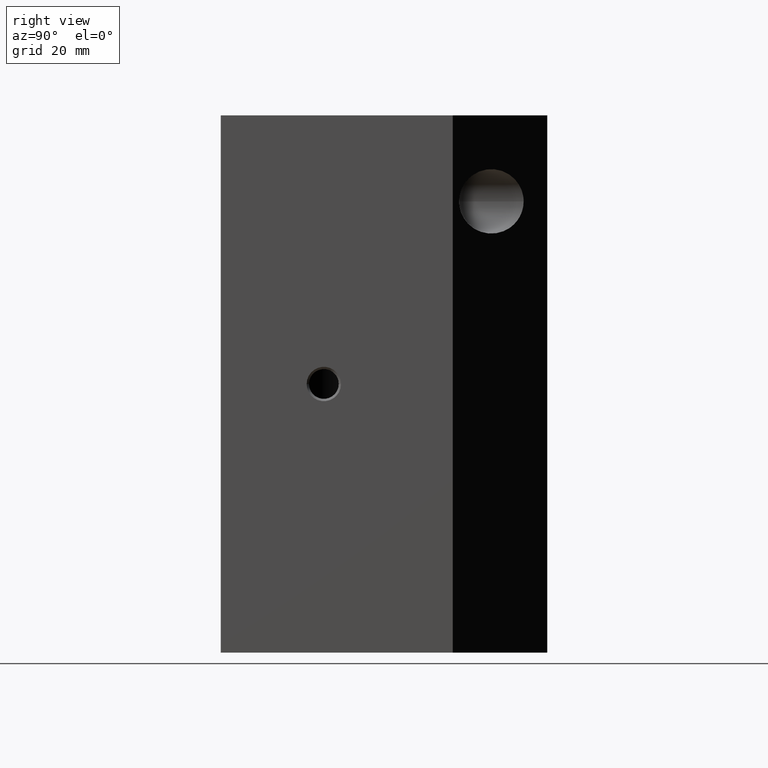
[diagram: clean part render]
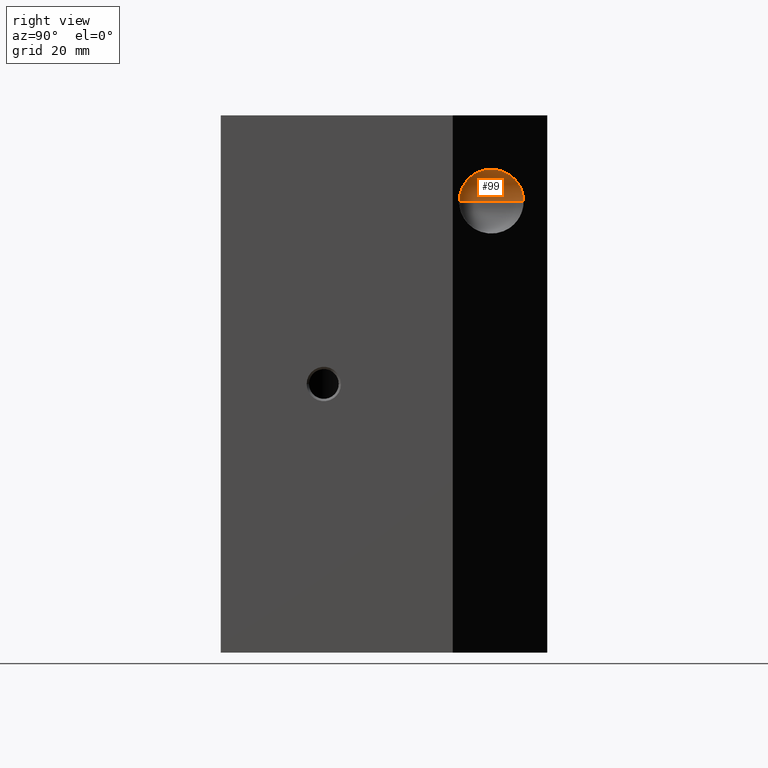
[diagram: same view with one face highlighted and labeled with its STEP entity id]
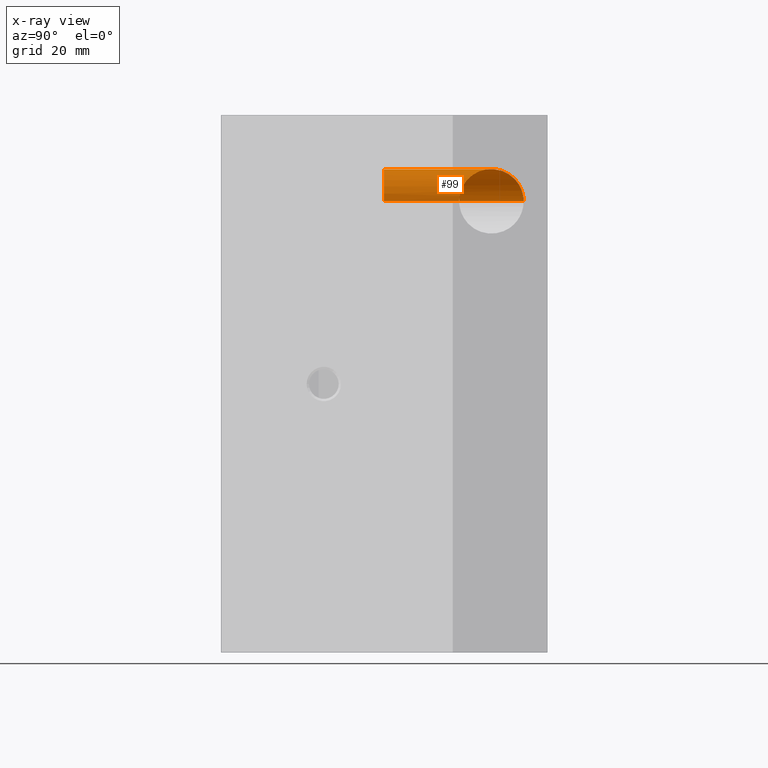
[diagram: x-ray of the same camera — body ghosted, the highlighted face saturated]
A machine part, right view. The second image highlights one B-rep face of the part: STEP entity #99.
The next image is the same camera in x-ray: the body ghosted, the highlighted face saturated — about 0% of this face is hidden behind the body in this view.
In plain terms, the highlighted cylindrical surface (edge-blend (fillet) strip) has radius 7.5 mm, axis along (0, -1, -0).
Its self-contained STEP definition (entity closure, byte-faithful):
#99 = ADVANCED_FACE( '', ( #163 ), #164, .F. );
#163 = FACE_OUTER_BOUND( '', #243, .T. );
#164 = CYLINDRICAL_SURFACE( '', #244, 7.50000000000000 );
#243 = EDGE_LOOP( '', ( #440, #441, #442, #443 ) );
#244 = AXIS2_PLACEMENT_3D( '', #444, #445, #446 );
#440 = ORIENTED_EDGE( '', *, *, #534, .T. );
#441 = ORIENTED_EDGE( '', *, *, #584, .F. );
#442 = ORIENTED_EDGE( '', *, *, #536, .T. );
#443 = ORIENTED_EDGE( '', *, *, #585, .F. );
#444 = CARTESIAN_POINT( '', ( 34.5000000000000, 57.0000000000000, 105.000000000000 ) );
#445 = DIRECTION( '', ( 0.000000000000000, -1.00000000000000, -0.000000000000000 ) );
#446 = DIRECTION( '', ( 1.00000000000000, 0.000000000000000, 0.000000000000000 ) );
#534 = EDGE_CURVE( '', #618, #619, #620, .T. );
#536 = EDGE_CURVE( '', #623, #621, #624, .T. );
#584 = EDGE_CURVE( '', #623, #619, #700, .T. );
#585 = EDGE_CURVE( '', #618, #621, #701, .T. );
#618 = VERTEX_POINT( '', #814 );
#619 = VERTEX_POINT( '', #815 );
#620 = LINE( '', #816, #817 );
#621 = VERTEX_POINT( '', #818 );
#623 = VERTEX_POINT( '', #820 );
#624 = LINE( '', #821, #822 );
#700 = CIRCLE( '', #916, 7.50000000000000 );
#701 = ELLIPSE( '', #917, 10.6066017177982, 7.50000000000000 );
#814 = CARTESIAN_POINT( '', ( 42.0000000000000, 55.5000000000000, 105.000000000000 ) );
#815 = CARTESIAN_POINT( '', ( 42.0000000000000, 38.0000000000000, 105.000000000000 ) );
#816 = CARTESIAN_POINT( '', ( 42.0000000000000, 57.0000000000000, 105.000000000000 ) );
#817 = VECTOR( '', #976, 1.00000000000000 );
#818 = CARTESIAN_POINT( '', ( 27.0000000000000, 70.5000000000000, 105.000000000000 ) );
#820 = CARTESIAN_POINT( '', ( 27.0000000000000, 38.0000000000000, 105.000000000000 ) );
#821 = CARTESIAN_POINT( '', ( 27.0000000000000, 57.0000000000000, 105.000000000000 ) );
#822 = VECTOR( '', #980, 1.00000000000000 );
#916 = AXIS2_PLACEMENT_3D( '', #1086, #1087, #1088 );
#917 = AXIS2_PLACEMENT_3D( '', #1089, #1090, #1091 );
#976 = DIRECTION( '', ( -0.000000000000000, -1.00000000000000, -0.000000000000000 ) );
#980 = DIRECTION( '', ( -0.000000000000000, 1.00000000000000, 0.000000000000000 ) );
#1086 = CARTESIAN_POINT( '', ( 34.5000000000000, 38.0000000000000, 105.000000000000 ) );
#1087 = DIRECTION( '', ( -0.000000000000000, 1.00000000000000, 0.000000000000000 ) );
#1088 = DIRECTION( '', ( 1.00000000000000, 0.000000000000000, 0.000000000000000 ) );
#1089 = CARTESIAN_POINT( '', ( 34.5000000000000, 63.0000000000000, 105.000000000000 ) );
#1090 = DIRECTION( '', ( -0.707106781186548, -0.707106781186548, 0.000000000000000 ) );
#1091 = DIRECTION( '', ( 0.707106781186547, -0.707106781186547, 0.000000000000000 ) );